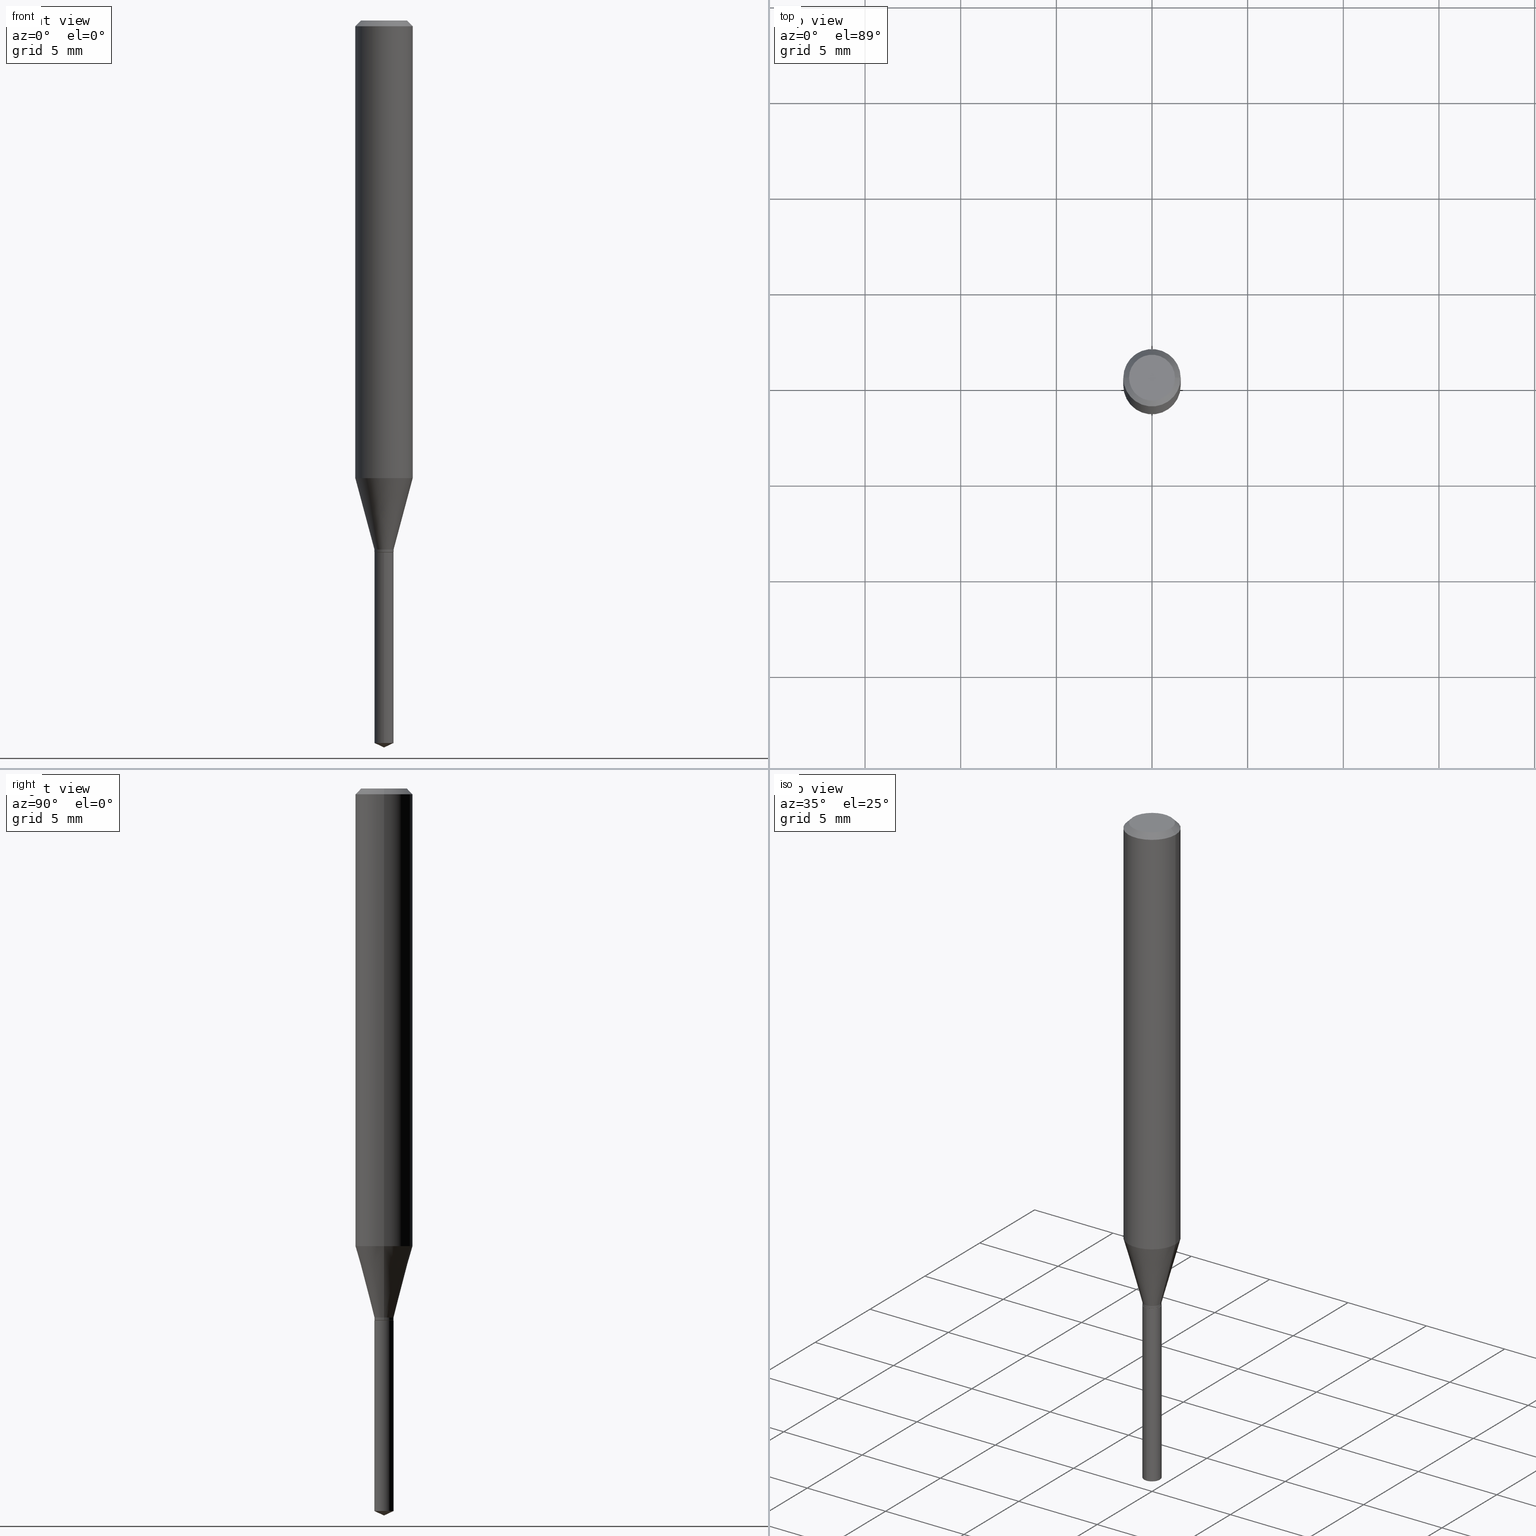
[diagram: canonical four-view strip — front | top / right | iso, engineering-drawing reading convention]
A machine part, canonical four-view strip (front | top / right | iso — engineering-drawing reading convention). The complete STEP part file that produces these views, byte-faithful:
ISO-10303-21;
HEADER;
FILE_DESCRIPTION (( 'STEP AP203' ),
    '1' );
FILE_NAME ('07480.STEP',
    '2024-04-23T21:55:08',
    ( '' ),
    ( '' ),
    'SwSTEP 2.0',
    'SolidWorks 2023',
    '' );
FILE_SCHEMA (( 'CONFIG_CONTROL_DESIGN' ));
ENDSEC;

DATA;
#1 = DIRECTION ( 'NONE',  ( 1.000000000000000000, -6.982962677686266711E-15, 4.876185090822587894E-29 ) ) ;
#2 = VECTOR ( 'NONE', #378, 39.37007874015748143 ) ;
#3 = FACE_OUTER_BOUND ( 'NONE', #320, .T. ) ;
#4 = ORGANIZATION ( 'UNSPECIFIED', 'UNSPECIFIED', '' ) ;
#5 = CARTESIAN_POINT ( 'NONE',  ( -0.05905000000000000526, -1.245082164935856452E-15, -0.01181000000000007738 ) ) ;
#6 = DIRECTION ( 'NONE',  ( 1.000000000000000000, 0.000000000000000000, 0.000000000000000000 ) ) ;
#7 = DIRECTION ( 'NONE',  ( 1.000000000000000000, -6.982962677686266711E-15, 4.876176775795935793E-29 ) ) ;
#8 = EDGE_LOOP ( 'NONE', ( #316, #427, #355, #350 ) ) ;
#9 = CARTESIAN_POINT ( 'NONE',  ( 0.000000000000000000, 0.000000000000000000, 0.000000000000000000 ) ) ;
#10 = EDGE_CURVE ( 'NONE', #385, #415, #285, .T. ) ;
#11 = VECTOR ( 'NONE', #34, 39.37007874015748143 ) ;
#12 = ORIENTED_EDGE ( 'NONE', *, *, #224, .T. ) ;
#13 = ORIENTED_EDGE ( 'NONE', *, *, #151, .T. ) ;
#14 = EDGE_LOOP ( 'NONE', ( #55, #207, #456, #125 ) ) ;
#15 = EDGE_CURVE ( 'NONE', #85, #391, #92, .T. ) ;
#16 = VERTEX_POINT ( 'NONE', #172 ) ;
#17 = FACE_OUTER_BOUND ( 'NONE', #81, .T. ) ;
#18 = CONICAL_SURFACE ( 'NONE', #390, 0.01969999999999999876, 0.2617993877991498519 ) ;
#19 = AXIS2_PLACEMENT_3D ( 'NONE', #91, #126, #470 ) ;
#20 = LINE ( 'NONE', #388, #36 ) ;
#21 = VERTEX_POINT ( 'NONE', #295 ) ;
#22 = CALENDAR_DATE ( 2024, 23, 4 ) ;
#23 = ORIENTED_EDGE ( 'NONE', *, *, #166, .T. ) ;
#24 = APPROVAL_ROLE ( '' ) ;
#25 = ADVANCED_FACE ( 'NONE', ( #412 ), #363, .T. ) ;
#26 = DIRECTION ( 'NONE',  ( 0.2588190451025211281, 1.565188264969622954E-15, 0.9659258262890679791 ) ) ;
#27 = CIRCLE ( 'NONE', #444, 0.01969999999999999876 ) ;
#28 = APPROVAL_STATUS ( 'not_yet_approved' ) ;
#29 = DIRECTION ( 'NONE',  ( -2.445468806185136877E-29, 3.491481338843145188E-15, 1.000000000000000000 ) ) ;
#30 = PERSON_AND_ORGANIZATION ( #119, #4 ) ;
#31 = DESIGN_CONTEXT ( 'detailed design', #243, 'design' ) ;
#32 = DIRECTION ( 'NONE',  ( 1.000000000000000000, -6.982962677686266711E-15, 4.876176775795935793E-29 ) ) ;
#33 = APPROVAL ( #135, 'UNSPECIFIED' ) ;
#34 = DIRECTION ( 'NONE',  ( -0.7071067811865218156, 7.493145998870261075E-15, 0.7071067811865732189 ) ) ;
#35 = APPROVAL_ROLE ( '' ) ;
#36 = VECTOR ( 'NONE', #204, 39.37007874015748143 ) ;
#37 = LINE ( 'NONE', #110, #474 ) ;
#38 = DIRECTION ( 'NONE',  ( 0.7071067811865218156, -2.468850131081987665E-15, 0.7071067811865732189 ) ) ;
#39 = CARTESIAN_POINT ( 'NONE',  ( 2.676565608369631794E-29, -3.821426325363822773E-15, -1.094499999999999806 ) ) ;
#40 = COORDINATED_UNIVERSAL_TIME_OFFSET ( 5, 0, .BEHIND. ) ;
#41 = AXIS2_PLACEMENT_3D ( 'NONE', #367, #256, #32 ) ;
#42 = FACE_OUTER_BOUND ( 'NONE', #8, .T. ) ;
#43 = AXIS2_PLACEMENT_3D ( 'NONE', #338, #153, #455 ) ;
#44 =( CONVERSION_BASED_UNIT ( 'INCH', #152 ) LENGTH_UNIT ( ) NAMED_UNIT ( #404 ) );
#45 = DIRECTION ( 'NONE',  ( -2.445468806185136597E-29, 3.491481338843145583E-15, 1.000000000000000000 ) ) ;
#46 = EDGE_CURVE ( 'NONE', #21, #431, #82, .T. ) ;
#47 = EDGE_LOOP ( 'NONE', ( #383, #235 ) ) ;
#48 = DIRECTION ( 'NONE',  ( 1.000000000000000000, -6.982962677686254878E-15, 0.000000000000000000 ) ) ;
#49 = VERTEX_POINT ( 'NONE', #217 ) ;
#50 = FACE_OUTER_BOUND ( 'NONE', #309, .T. ) ;
#51 = VECTOR ( 'NONE', #216, 39.37007874015748854 ) ;
#52 = AXIS2_PLACEMENT_3D ( 'NONE', #418, #115, #158 ) ;
#53 = ORIENTED_EDGE ( 'NONE', *, *, #100, .T. ) ;
#54 = EDGE_CURVE ( 'NONE', #431, #21, #60, .T. ) ;
#55 = ORIENTED_EDGE ( 'NONE', *, *, #368, .F. ) ;
#56 = ORIENTED_EDGE ( 'NONE', *, *, #224, .F. ) ;
#57 = DIRECTION ( 'NONE',  ( -6.982962677686266711E-15, -1.000000000000000000, 3.520397390770457025E-15 ) ) ;
#58 = PRODUCT_DEFINITION_SHAPE ( 'NONE', 'NONE',  #381 ) ;
#59 = AXIS2_PLACEMENT_3D ( 'NONE', #403, #292, #372 ) ;
#60 = CIRCLE ( 'NONE', #408, 0.01969999999999999876 ) ;
#61 = PERSON_AND_ORGANIZATION ( #119, #4 ) ;
#62 = EDGE_CURVE ( 'NONE', #98, #129, #365, .T. ) ;
#63 = APPLICATION_CONTEXT ( 'configuration controlled 3d designs of mechanical parts and assemblies' ) ;
#64 = CARTESIAN_POINT ( 'NONE',  ( 2.676565608369631794E-29, -3.821426325363822773E-15, -1.094499999999999806 ) ) ;
#65 = PERSON_AND_ORGANIZATION_ROLE ( 'classification_officer' ) ;
#66 = CARTESIAN_POINT ( 'NONE',  ( 3.636201719211425754E-29, -5.191530781201762565E-15, -1.486913739134346546 ) ) ;
#67 = AXIS2_PLACEMENT_3D ( 'NONE', #282, #349, #205 ) ;
#68 = AXIS2_PLACEMENT_3D ( 'NONE', #266, #45, #419 ) ;
#69 = FACE_OUTER_BOUND ( 'NONE', #211, .T. ) ;
#70 = CC_DESIGN_PERSON_AND_ORGANIZATION_ASSIGNMENT ( #79, #225, ( #424 ) ) ;
#71 = DIRECTION ( 'NONE',  ( -2.445468806185136597E-29, 3.491481338843145583E-15, 1.000000000000000000 ) ) ;
#72 = DIRECTION ( 'NONE',  ( 1.000000000000000000, -6.982962677686277755E-15, 0.000000000000000000 ) ) ;
#73 = CIRCLE ( 'NONE', #317, 0.01919999999999999832 ) ;
#74 = CC_DESIGN_APPROVAL ( #294, ( #381 ) ) ;
#75 = DIRECTION ( 'NONE',  ( -2.445468806185136597E-29, 3.491481338843145583E-15, 1.000000000000000000 ) ) ;
#76 =( LENGTH_UNIT ( ) NAMED_UNIT ( * ) SI_UNIT ( $, .METRE. ) );
#77 = EDGE_CURVE ( 'NONE', #431, #375, #103, .T. ) ;
#78 = CARTESIAN_POINT ( 'NONE',  ( 2.676565608369631794E-29, -3.821426325363822773E-15, -1.094499999999999806 ) ) ;
#79 = PERSON_AND_ORGANIZATION ( #119, #4 ) ;
#80 = DIRECTION ( 'NONE',  ( -2.445470214571802116E-29, 3.491479321953280158E-15, 1.000000000000000000 ) ) ;
#81 = EDGE_LOOP ( 'NONE', ( #351, #304 ) ) ;
#82 = CIRCLE ( 'NONE', #244, 0.01969999999999999876 ) ;
#83 = FACE_OUTER_BOUND ( 'NONE', #361, .T. ) ;
#84 = CC_DESIGN_PERSON_AND_ORGANIZATION_ASSIGNMENT ( #101, #65, ( #382 ) ) ;
#85 = VERTEX_POINT ( 'NONE', #331 ) ;
#86 = LINE ( 'NONE', #457, #2 ) ;
#87 = ORIENTED_EDGE ( 'NONE', *, *, #104, .F. ) ;
#88 = CARTESIAN_POINT ( 'NONE',  ( 1.399769189447761387E-16, 0.01969999999999617890, -1.094500000000000028 ) ) ;
#89 = ORIENTED_EDGE ( 'NONE', *, *, #104, .T. ) ;
#90 = EDGE_CURVE ( 'NONE', #273, #16, #335, .T. ) ;
#91 = CARTESIAN_POINT ( 'NONE',  ( 2.888098660104665518E-31, -4.123439461173782112E-17, -0.01181000000000007738 ) ) ;
#92 = LINE ( 'NONE', #465, #188 ) ;
#93 = CONICAL_SURFACE ( 'NONE', #52, 0.05905000000000000526, 0.7853981633974452814 ) ;
#94 = ORIENTED_EDGE ( 'NONE', *, *, #140, .T. ) ;
#95 = CARTESIAN_POINT ( 'NONE',  ( 0.000000000000000000, 0.000000000000000000, 0.000000000000000000 ) ) ;
#96 = ORIENTED_EDGE ( 'NONE', *, *, #233, .F. ) ;
#97 = CARTESIAN_POINT ( 'NONE',  ( -1.375643647503926643E-16, -0.01970000000000381862, -1.094499999999999806 ) ) ;
#98 = VERTEX_POINT ( 'NONE', #250 ) ;
#99 = VECTOR ( 'NONE', #296, 39.37007874015748143 ) ;
#100 = EDGE_CURVE ( 'NONE', #21, #387, #373, .T. ) ;
#101 = PERSON_AND_ORGANIZATION ( #119, #4 ) ;
#102 = CARTESIAN_POINT ( 'NONE',  ( 2.662137342413139764E-29, -3.800826585464648242E-15, -1.088600000000000012 ) ) ;
#103 = LINE ( 'NONE', #337, #339 ) ;
#104 = EDGE_CURVE ( 'NONE', #129, #431, #37, .T. ) ;
#105 = DIRECTION ( 'NONE',  ( 1.000000000000000000, -6.982962677686267499E-15, 0.000000000000000000 ) ) ;
#106 = COORDINATED_UNIVERSAL_TIME_OFFSET ( 5, 0, .BEHIND. ) ;
#107 = APPROVAL_PERSON_ORGANIZATION ( #61, #33, #405 ) ;
#108 = CARTESIAN_POINT ( 'NONE',  ( -0.01919999999999999832, -3.685002120097882785E-15, -1.094499999999999806 ) ) ;
#109 = DIRECTION ( 'NONE',  ( 1.000000000000000000, -6.982962677686267499E-15, 0.000000000000000000 ) ) ;
#110 = CARTESIAN_POINT ( 'NONE',  ( 0.01969999999999999876, -1.375643647504194363E-16, 9.606068248317991466E-31 ) ) ;
#111 = PLANE ( 'NONE',  #253 ) ;
#112 = ORIENTED_EDGE ( 'NONE', *, *, #249, .T. ) ;
#113 = EDGE_CURVE ( 'NONE', #16, #98, #406, .T. ) ;
#114 = AXIS2_PLACEMENT_3D ( 'NONE', #201, #174, #239 ) ;
#115 = DIRECTION ( 'NONE',  ( 2.445468806185136597E-29, -3.491481338843145583E-15, -1.000000000000000000 ) ) ;
#116 = DIRECTION ( 'NONE',  ( 1.000000000000000000, -6.982962677686277755E-15, 0.000000000000000000 ) ) ;
#117 = LINE ( 'NONE', #343, #198 ) ;
#118 = EDGE_CURVE ( 'NONE', #127, #311, #154, .T. ) ;
#119 = PERSON ( 'UNSPECIFIED', 'UNSPECIFIED', 'UNSPECIFIED', ('UNSPECIFIED'), ('UNSPECIFIED'), ('UNSPECIFIED') ) ;
#120 = ORIENTED_EDGE ( 'NONE', *, *, #393, .F. ) ;
#121 = AXIS2_PLACEMENT_3D ( 'NONE', #270, #377, #230 ) ;
#122 = PRODUCT_DEFINITION_FORMATION_WITH_SPECIFIED_SOURCE ( 'ANY', '', #424, .NOT_KNOWN. ) ;
#123 = CYLINDRICAL_SURFACE ( 'NONE', #276, 0.05905000000000006077 ) ;
#124 = AXIS2_PLACEMENT_3D ( 'NONE', #191, #75, #156 ) ;
#125 = ORIENTED_EDGE ( 'NONE', *, *, #484, .T. ) ;
#126 = DIRECTION ( 'NONE',  ( 2.445468806185136597E-29, -3.491481338843145583E-15, -1.000000000000000000 ) ) ;
#127 = VERTEX_POINT ( 'NONE', #147 ) ;
#128 = ORIENTED_EDGE ( 'NONE', *, *, #90, .T. ) ;
#129 = VERTEX_POINT ( 'NONE', #177 ) ;
#130 = CARTESIAN_POINT ( 'NONE',  ( 2.303005088084284954E-29, -3.288080906192655344E-15, -0.9417438007221644591 ) ) ;
#131 = ORIENTED_EDGE ( 'NONE', *, *, #140, .F. ) ;
#132 = CARTESIAN_POINT ( 'NONE',  ( -0.05905000000000010935, -2.868505420726315851E-15, -0.9417438007221644591 ) ) ;
#133 = VERTEX_POINT ( 'NONE', #212 ) ;
#134 = APPROVAL ( #28, 'UNSPECIFIED' ) ;
#135 = APPROVAL_STATUS ( 'not_yet_approved' ) ;
#136 = ORIENTED_EDGE ( 'NONE', *, *, #46, .F. ) ;
#137 = LOCAL_TIME ( 17, 55, 8.000000000000000000, #251 ) ;
#138 = PERSON_AND_ORGANIZATION ( #119, #4 ) ;
#139 = DIRECTION ( 'NONE',  ( -2.445470214571802116E-29, 3.491479321953280158E-15, 1.000000000000000000 ) ) ;
#140 = EDGE_CURVE ( 'NONE', #49, #415, #477, .T. ) ;
#141 = COORDINATED_UNIVERSAL_TIME_OFFSET ( 5, 0, .BEHIND. ) ;
#142 = DIRECTION ( 'NONE',  ( -2.445468806185136597E-29, 3.491481338843145583E-15, 1.000000000000000000 ) ) ;
#143 = PERSON_AND_ORGANIZATION ( #119, #4 ) ;
#144 = DIRECTION ( 'NONE',  ( -2.445470214571802116E-29, 3.491479321953280158E-15, 1.000000000000000000 ) ) ;
#145 = DIRECTION ( 'NONE',  ( 1.000000000000000000, -6.982962677686254878E-15, 0.000000000000000000 ) ) ;
#146 = CIRCLE ( 'NONE', #286, 0.04724000000000000421 ) ;
#147 = CARTESIAN_POINT ( 'NONE',  ( 0.05905000000000000526, -4.535783407291119586E-16, -0.01181000000000007738 ) ) ;
#148 = ORIENTED_EDGE ( 'NONE', *, *, #271, .T. ) ;
#149 =( NAMED_UNIT ( * ) PLANE_ANGLE_UNIT ( ) SI_UNIT ( $, .RADIAN. ) );
#150 = CARTESIAN_POINT ( 'NONE',  ( 3.658664905062460986E-29, -5.223606628546217219E-15, -1.496099999999999985 ) ) ;
#151 = EDGE_CURVE ( 'NONE', #49, #391, #162, .T. ) ;
#152 = LENGTH_MEASURE_WITH_UNIT ( LENGTH_MEASURE( 0.02539999999999999897 ), #76 );
#153 = DIRECTION ( 'NONE',  ( -2.445468806185136597E-29, 3.491481338843145583E-15, 1.000000000000000000 ) ) ;
#154 = CIRCLE ( 'NONE', #236, 0.05905000000000000526 ) ;
#155 = AXIS2_PLACEMENT_3D ( 'NONE', #322, #328, #332 ) ;
#156 = DIRECTION ( 'NONE',  ( 1.000000000000000000, -6.982962677686254878E-15, 0.000000000000000000 ) ) ;
#157 = ADVANCED_FACE ( 'NONE', ( #69 ), #252, .T. ) ;
#158 = DIRECTION ( 'NONE',  ( -1.000000000000000000, 6.982962677686267499E-15, 0.000000000000000000 ) ) ;
#159 = EDGE_LOOP ( 'NONE', ( #435, #459, #194 ) ) ;
#160 = DIRECTION ( 'NONE',  ( -2.445470214571802116E-29, 3.491479321953280158E-15, 1.000000000000000000 ) ) ;
#161 = ORIENTED_EDGE ( 'NONE', *, *, #10, .F. ) ;
#162 = CIRCLE ( 'NONE', #325, 0.01969999999999999876 ) ;
#163 = AXIS2_PLACEMENT_3D ( 'NONE', #95, #168, #360 ) ;
#164 = DIRECTION ( 'NONE',  ( 6.982962677686265922E-15, 1.000000000000000000, -3.491479321953280158E-15 ) ) ;
#165 = ORIENTED_EDGE ( 'NONE', *, *, #113, .T. ) ;
#166 = EDGE_CURVE ( 'NONE', #129, #98, #27, .T. ) ;
#167 = ORIENTED_EDGE ( 'NONE', *, *, #151, .F. ) ;
#168 = DIRECTION ( 'NONE',  ( -2.445468806185136597E-29, 3.491481338843145583E-15, 1.000000000000000000 ) ) ;
#169 = ORIENTED_EDGE ( 'NONE', *, *, #182, .T. ) ;
#170 = EDGE_LOOP ( 'NONE', ( #432, #53, #184, #238 ) ) ;
#171 = AXIS2_PLACEMENT_3D ( 'NONE', #176, #327, #72 ) ;
#172 = CARTESIAN_POINT ( 'NONE',  ( -0.01919999999999999832, -3.682352892923772373E-15, -1.094499999999999806 ) ) ;
#173 = CC_DESIGN_PERSON_AND_ORGANIZATION_ASSIGNMENT ( #138, #213, ( #122 ) ) ;
#174 = DIRECTION ( 'NONE',  ( -2.445470214571802116E-29, 3.491479321953280158E-15, 1.000000000000000000 ) ) ;
#175 = SECURITY_CLASSIFICATION_LEVEL ( 'unclassified' ) ;
#176 = CARTESIAN_POINT ( 'NONE',  ( 2.676565608369631794E-29, -3.821426325363822773E-15, -1.094499999999999806 ) ) ;
#177 = CARTESIAN_POINT ( 'NONE',  ( 0.01969999999999999876, -3.957244949444820484E-15, -1.093999999999999861 ) ) ;
#178 = CARTESIAN_POINT ( 'NONE',  ( 2.888098660104665518E-31, -4.123439461173782112E-17, -0.01181000000000007738 ) ) ;
#179 = DIRECTION ( 'NONE',  ( -2.445470214571802396E-29, 3.491479321953280158E-15, 1.000000000000000000 ) ) ;
#180 = APPROVAL_PERSON_ORGANIZATION ( #143, #134, #24 ) ;
#181 = CALENDAR_DATE ( 2024, 23, 4 ) ;
#182 = EDGE_CURVE ( 'NONE', #387, #311, #258, .T. ) ;
#183 = DIRECTION ( 'NONE',  ( 1.000000000000000000, -6.982962677686267499E-15, 0.000000000000000000 ) ) ;
#184 = ORIENTED_EDGE ( 'NONE', *, *, #187, .F. ) ;
#185 = DIRECTION ( 'NONE',  ( -6.982962677686266711E-15, -1.000000000000000000, 3.520397390770457025E-15 ) ) ;
#186 = MECHANICAL_CONTEXT ( 'NONE', #63, 'mechanical' ) ;
#187 = EDGE_CURVE ( 'NONE', #375, #387, #197, .T. ) ;
#188 = VECTOR ( 'NONE', #354, 39.37007874015748854 ) ;
#189 = CARTESIAN_POINT ( 'NONE',  ( 0.000000000000000000, 0.000000000000000000, 0.000000000000000000 ) ) ;
#190 = CIRCLE ( 'NONE', #215, 0.01969999999999999876 ) ;
#191 = CARTESIAN_POINT ( 'NONE',  ( 2.662137342413139764E-29, -3.800826585464648242E-15, -1.088600000000000012 ) ) ;
#192 = PERSON_AND_ORGANIZATION ( #119, #4 ) ;
#193 = DIRECTION ( 'NONE',  ( 1.000000000000000000, -6.982962677686277755E-15, 0.000000000000000000 ) ) ;
#194 = ORIENTED_EDGE ( 'NONE', *, *, #440, .F. ) ;
#195 = CARTESIAN_POINT ( 'NONE',  ( 0.01919999999999999832, -3.955499208775398981E-15, -1.094499999999999806 ) ) ;
#196 = EDGE_LOOP ( 'NONE', ( #272, #228, #94, #161 ) ) ;
#197 = CIRCLE ( 'NONE', #437, 0.05905000000000010935 ) ;
#198 = VECTOR ( 'NONE', #423, 39.37007874015748143 ) ;
#199 = DIRECTION ( 'NONE',  ( -2.445470214571802116E-29, 3.491479321953280158E-15, 1.000000000000000000 ) ) ;
#200 = ORIENTED_EDGE ( 'NONE', *, *, #368, .T. ) ;
#201 = CARTESIAN_POINT ( 'NONE',  ( 2.676565608369631794E-29, -3.821426325363822773E-15, -1.094499999999999806 ) ) ;
#202 = ORIENTED_EDGE ( 'NONE', *, *, #54, .F. ) ;
#203 = ORIENTED_EDGE ( 'NONE', *, *, #420, .T. ) ;
#204 = DIRECTION ( 'NONE',  ( -2.445468806185136877E-29, 3.491481338843145188E-15, 1.000000000000000000 ) ) ;
#205 = DIRECTION ( 'NONE',  ( -6.982962677686265133E-15, -1.000000000000000000, 6.933624349401683764E-15 ) ) ;
#206 = EDGE_CURVE ( 'NONE', #85, #49, #488, .T. ) ;
#207 = ORIENTED_EDGE ( 'NONE', *, *, #324, .F. ) ;
#208 = AXIS2_PLACEMENT_3D ( 'NONE', #189, #265, #6 ) ;
#209 = CALENDAR_DATE ( 2024, 23, 4 ) ;
#210 = CARTESIAN_POINT ( 'NONE',  ( 0.05905000000000010935, -3.700424852310029476E-15, -0.9417438007221644591 ) ) ;
#211 = EDGE_LOOP ( 'NONE', ( #314, #169, #269, #120 ) ) ;
#212 = CARTESIAN_POINT ( 'NONE',  ( 0.04724000000000000421, -3.852183633974369838E-16, -3.380025165621689721E-19 ) ) ;
#213 = PERSON_AND_ORGANIZATION_ROLE ( 'design_supplier' ) ;
#214 = DIRECTION ( 'NONE',  ( 1.000000000000000000, -6.982962677686254878E-15, 0.000000000000000000 ) ) ;
#215 = AXIS2_PLACEMENT_3D ( 'NONE', #237, #283, #392 ) ;
#216 = DIRECTION ( 'NONE',  ( -0.2588190451025211281, 5.211531920934547886E-15, 0.9659258262890679791 ) ) ;
#217 = CARTESIAN_POINT ( 'NONE',  ( -1.375643647503830500E-16, -0.01970000000000518905, -1.486913739134346546 ) ) ;
#218 = CC_DESIGN_DATE_AND_TIME_ASSIGNMENT ( #358, #290, ( #382 ) ) ;
#219 = DIRECTION ( 'NONE',  ( -2.445468806185136597E-29, 3.491481338843145583E-15, 1.000000000000000000 ) ) ;
#220 = VECTOR ( 'NONE', #297, 39.37007874015748143 ) ;
#221 = CONICAL_SURFACE ( 'NONE', #366, 84.42940631927426409, 1.134464013796315562 ) ;
#222 = CARTESIAN_POINT ( 'NONE',  ( -9.261968845786000133E-28, 1.322362114038720264E-13, 37.87397874015748300 ) ) ;
#223 = FACE_OUTER_BOUND ( 'NONE', #450, .T. ) ;
#224 = EDGE_CURVE ( 'NONE', #16, #273, #73, .T. ) ;
#225 = PERSON_AND_ORGANIZATION_ROLE ( 'design_owner' ) ;
#226 = DIRECTION ( 'NONE',  ( -2.445468806185136597E-29, 3.491481338843145583E-15, 1.000000000000000000 ) ) ;
#227 = CLOSED_SHELL ( 'NONE', ( #359, #330, #157, #240, #25, #398, #301, #263, #426, #469, #307, #348 ) ) ;
#228 = ORIENTED_EDGE ( 'NONE', *, *, #440, .T. ) ;
#229 =( GEOMETRIC_REPRESENTATION_CONTEXT ( 3 ) GLOBAL_UNCERTAINTY_ASSIGNED_CONTEXT ( ( #436 ) ) GLOBAL_UNIT_ASSIGNED_CONTEXT ( ( #44, #149, #267 ) ) REPRESENTATION_CONTEXT ( 'NONE', 'WORKASPACE' ) );
#230 = DIRECTION ( 'NONE',  ( 1.000000000000000000, -6.982962677686265922E-15, 4.876176775795935793E-29 ) ) ;
#231 = EDGE_LOOP ( 'NONE', ( #389, #203, #274, #344 ) ) ;
#232 = DIRECTION ( 'NONE',  ( -2.445468806185136597E-29, 3.491481338843145583E-15, 1.000000000000000000 ) ) ;
#233 = EDGE_CURVE ( 'NONE', #415, #385, #356, .T. ) ;
#234 = ORIENTED_EDGE ( 'NONE', *, *, #277, .F. ) ;
#235 = ORIENTED_EDGE ( 'NONE', *, *, #10, .T. ) ;
#236 = AXIS2_PLACEMENT_3D ( 'NONE', #248, #371, #105 ) ;
#237 = CARTESIAN_POINT ( 'NONE',  ( 3.636201719211425754E-29, -5.191530781201762565E-15, -1.486913739134346546 ) ) ;
#238 = ORIENTED_EDGE ( 'NONE', *, *, #77, .F. ) ;
#239 = DIRECTION ( 'NONE',  ( -6.982962677686265133E-15, -1.000000000000000000, 6.933624349401683764E-15 ) ) ;
#240 = ADVANCED_FACE ( 'NONE', ( #268 ), #18, .T. ) ;
#241 = ORIENTED_EDGE ( 'NONE', *, *, #490, .F. ) ;
#242 = CARTESIAN_POINT ( 'NONE',  ( -9.261968845786000133E-28, 1.322362114038720264E-13, 37.87397874015748300 ) ) ;
#243 = APPLICATION_CONTEXT ( 'configuration controlled 3d designs of mechanical parts and assemblies' ) ;
#244 = AXIS2_PLACEMENT_3D ( 'NONE', #443, #142, #214 ) ;
#245 = LOCAL_TIME ( 17, 55, 8.000000000000000000, #106 ) ;
#246 = ORIENTED_EDGE ( 'NONE', *, *, #62, .F. ) ;
#247 = PERSON_AND_ORGANIZATION_ROLE ( 'creator' ) ;
#248 = CARTESIAN_POINT ( 'NONE',  ( 2.888098660104665518E-31, -4.123439461173782112E-17, -0.01181000000000007738 ) ) ;
#249 = EDGE_CURVE ( 'NONE', #273, #129, #260, .T. ) ;
#250 = CARTESIAN_POINT ( 'NONE',  ( -0.01969999999999999876, -3.670276666134784264E-15, -1.093999999999999861 ) ) ;
#251 = COORDINATED_UNIVERSAL_TIME_OFFSET ( 5, 0, .BEHIND. ) ;
#252 = CYLINDRICAL_SURFACE ( 'NONE', #41, 0.05905000000000006077 ) ;
#253 = AXIS2_PLACEMENT_3D ( 'NONE', #380, #302, #164 ) ;
#254 = CIRCLE ( 'NONE', #430, 0.05905000000000000526 ) ;
#255 = DIRECTION ( 'NONE',  ( -6.982962677686265133E-15, -1.000000000000000000, 6.933624349401683764E-15 ) ) ;
#256 = DIRECTION ( 'NONE',  ( -2.445468806185136597E-29, 3.491481338843145583E-15, 1.000000000000000000 ) ) ;
#257 = CC_DESIGN_DATE_AND_TIME_ASSIGNMENT ( #411, #475, ( #381 ) ) ;
#258 = LINE ( 'NONE', #486, #99 ) ;
#259 = ORIENTED_EDGE ( 'NONE', *, *, #15, .T. ) ;
#260 = LINE ( 'NONE', #195, #299 ) ;
#261 = AXIS2_PLACEMENT_3D ( 'NONE', #410, #71, #442 ) ;
#262 = CC_DESIGN_SECURITY_CLASSIFICATION ( #382, ( #122 ) ) ;
#263 = ADVANCED_FACE ( 'NONE', ( #303 ), #123, .T. ) ;
#264 = CARTESIAN_POINT ( 'NONE',  ( 0.01919999999999999832, -3.955499208775398981E-15, -1.094499999999999806 ) ) ;
#265 = DIRECTION ( 'NONE',  ( 0.000000000000000000, 0.000000000000000000, 1.000000000000000000 ) ) ;
#266 = CARTESIAN_POINT ( 'NONE',  ( 2.676565608369631794E-29, -3.821426325363822773E-15, -1.094499999999999806 ) ) ;
#267 =( NAMED_UNIT ( * ) SI_UNIT ( $, .STERADIAN. ) SOLID_ANGLE_UNIT ( ) );
#268 = FACE_OUTER_BOUND ( 'NONE', #170, .T. ) ;
#269 = ORIENTED_EDGE ( 'NONE', *, *, #118, .F. ) ;
#270 = CARTESIAN_POINT ( 'NONE',  ( 2.676565608369631794E-29, -3.821426325363822773E-15, -1.094499999999999806 ) ) ;
#271 = EDGE_CURVE ( 'NONE', #391, #385, #298, .T. ) ;
#272 = ORIENTED_EDGE ( 'NONE', *, *, #271, .F. ) ;
#273 = VERTEX_POINT ( 'NONE', #264 ) ;
#274 = ORIENTED_EDGE ( 'NONE', *, *, #393, .T. ) ;
#275 = ORIENTED_EDGE ( 'NONE', *, *, #118, .T. ) ;
#276 = AXIS2_PLACEMENT_3D ( 'NONE', #9, #226, #7 ) ;
#277 = EDGE_CURVE ( 'NONE', #396, #311, #86, .T. ) ;
#278 = CONICAL_SURFACE ( 'NONE', #19, 0.05905000000000000526, 0.7853981633974452814 ) ;
#279 = FACE_OUTER_BOUND ( 'NONE', #461, .T. ) ;
#280 = ORIENTED_EDGE ( 'NONE', *, *, #113, .F. ) ;
#281 = DIRECTION ( 'NONE',  ( -2.445468806185136597E-29, 3.491481338843145583E-15, 1.000000000000000000 ) ) ;
#282 = CARTESIAN_POINT ( 'NONE',  ( 2.676565608369631794E-29, -3.821426325363822773E-15, -1.094499999999999806 ) ) ;
#283 = DIRECTION ( 'NONE',  ( -2.445470214571802116E-29, 3.491479321953280158E-15, 1.000000000000000000 ) ) ;
#284 = COORDINATED_UNIVERSAL_TIME_OFFSET ( 5, 0, .BEHIND. ) ;
#285 = CIRCLE ( 'NONE', #67, 0.01969999999999999876 ) ;
#286 = AXIS2_PLACEMENT_3D ( 'NONE', #487, #232, #1 ) ;
#287 = ORIENTED_EDGE ( 'NONE', *, *, #249, .F. ) ;
#288 = ADVANCED_FACE ( 'NONE', ( #421 ), #111, .F. ) ;
#289 = DIRECTION ( 'NONE',  ( -6.982962677686265133E-15, -1.000000000000000000, 0.000000000000000000 ) ) ;
#290 = DATE_TIME_ROLE ( 'classification_date' ) ;
#291 = CARTESIAN_POINT ( 'NONE',  ( 2.676565608369631794E-29, -3.821426325363822773E-15, -1.094499999999999806 ) ) ;
#292 = DIRECTION ( 'NONE',  ( -2.445468806185136597E-29, 3.491481338843145583E-15, 1.000000000000000000 ) ) ;
#293 = MANIFOLD_SOLID_BREP ( 'Body-Move/Copy2[2]', #227 ) ;
#294 = APPROVAL ( #305, 'UNSPECIFIED' ) ;
#295 = CARTESIAN_POINT ( 'NONE',  ( -0.01969999999999999876, -3.670276666134784264E-15, -1.088600000000000012 ) ) ;
#296 = DIRECTION ( 'NONE',  ( -2.445468806185136877E-29, 3.491481338843145188E-15, 1.000000000000000000 ) ) ;
#297 = DIRECTION ( 'NONE',  ( -6.328713451373374112E-15, -0.9063077870366490485, 0.4226182617407013287 ) ) ;
#298 = LINE ( 'NONE', #416, #333 ) ;
#299 = VECTOR ( 'NONE', #38, 39.37007874015748143 ) ;
#300 = AXIS2_PLACEMENT_3D ( 'NONE', #39, #454, #116 ) ;
#301 = ADVANCED_FACE ( 'NONE', ( #42 ), #399, .T. ) ;
#302 = DIRECTION ( 'NONE',  ( 2.445470214571801836E-29, -3.491479321953280158E-15, -1.000000000000000000 ) ) ;
#303 = FACE_OUTER_BOUND ( 'NONE', #231, .T. ) ;
#304 = ORIENTED_EDGE ( 'NONE', *, *, #490, .T. ) ;
#305 = APPROVAL_STATUS ( 'not_yet_approved' ) ;
#306 = FACE_OUTER_BOUND ( 'NONE', #369, .T. ) ;
#307 = ADVANCED_FACE ( 'NONE', ( #83 ), #341, .F. ) ;
#308 = CIRCLE ( 'NONE', #326, 0.05905000000000010935 ) ;
#309 = EDGE_LOOP ( 'NONE', ( #422, #468, #89, #136 ) ) ;
#310 = CYLINDRICAL_SURFACE ( 'NONE', #163, 0.01969999999999999876 ) ;
#311 = VERTEX_POINT ( 'NONE', #5 ) ;
#312 = LINE ( 'NONE', #460, #357 ) ;
#313 = ADVANCED_FACE ( 'NONE', ( #3 ), #402, .T. ) ;
#314 = ORIENTED_EDGE ( 'NONE', *, *, #187, .T. ) ;
#315 = CARTESIAN_POINT ( 'NONE',  ( 0.01969999999999999876, -3.938390950215067457E-15, -1.088600000000000012 ) ) ;
#316 = ORIENTED_EDGE ( 'NONE', *, *, #100, .F. ) ;
#317 = AXIS2_PLACEMENT_3D ( 'NONE', #64, #386, #193 ) ;
#318 = LOCAL_TIME ( 17, 55, 8.000000000000000000, #40 ) ;
#319 = PLANE ( 'NONE',  #155 ) ;
#320 = EDGE_LOOP ( 'NONE', ( #397, #259, #167 ) ) ;
#321 = ADVANCED_BREP_SHAPE_REPRESENTATION ( '07480', ( #472, #293, #208 ), #229 ) ;
#322 = CARTESIAN_POINT ( 'NONE',  ( 4.132873053354867254E-48, -5.900647395337818946E-34, -1.690012582823346072E-19 ) ) ;
#323 = CALENDAR_DATE ( 2024, 23, 4 ) ;
#324 = EDGE_CURVE ( 'NONE', #396, #133, #439, .T. ) ;
#325 = AXIS2_PLACEMENT_3D ( 'NONE', #66, #139, #289 ) ;
#326 = AXIS2_PLACEMENT_3D ( 'NONE', #130, #281, #428 ) ;
#327 = DIRECTION ( 'NONE',  ( -2.445468806185136597E-29, 3.491481338843145583E-15, 1.000000000000000000 ) ) ;
#328 = DIRECTION ( 'NONE',  ( 2.438088387897960049E-29, -3.491481338843145188E-15, -1.000000000000000000 ) ) ;
#329 = CARTESIAN_POINT ( 'NONE',  ( 2.675342873966538993E-29, -3.819680584694400481E-15, -1.093999999999999861 ) ) ;
#330 = ADVANCED_FACE ( 'NONE', ( #451 ), #93, .T. ) ;
#331 = CARTESIAN_POINT ( 'NONE',  ( 3.658667988020872822E-29, -5.223602213574301462E-15, -1.496099999999999985 ) ) ;
#332 = DIRECTION ( 'NONE',  ( -1.000000000000000000, 6.982962677686265922E-15, -4.876176775795935793E-29 ) ) ;
#333 = VECTOR ( 'NONE', #384, 39.37007874015748143 ) ;
#334 = DIRECTION ( 'NONE',  ( -2.445468806185136597E-29, 3.491481338843145583E-15, 1.000000000000000000 ) ) ;
#335 = CIRCLE ( 'NONE', #171, 0.01919999999999999832 ) ;
#336 = LOCAL_TIME ( 17, 55, 8.000000000000000000, #141 ) ;
#337 = CARTESIAN_POINT ( 'NONE',  ( 0.01969999999999999876, -3.938390950215067457E-15, -1.088600000000000012 ) ) ;
#338 = CARTESIAN_POINT ( 'NONE',  ( 8.265746106709734507E-48, -1.180129479067563789E-33, -3.380025165646692144E-19 ) ) ;
#339 = VECTOR ( 'NONE', #26, 39.37007874015748854 ) ;
#340 = APPLICATION_PROTOCOL_DEFINITION ( 'international standard', 'config_control_design', 1994, #243 ) ;
#341 = PLANE ( 'NONE',  #121 ) ;
#342 = CC_DESIGN_PERSON_AND_ORGANIZATION_ASSIGNMENT ( #30, #247, ( #122 ) ) ;
#343 = CARTESIAN_POINT ( 'NONE',  ( 0.05905000000000000526, -4.463468013801467941E-16, -0.01181000000000007738 ) ) ;
#344 = ORIENTED_EDGE ( 'NONE', *, *, #484, .F. ) ;
#345 = DIRECTION ( 'NONE',  ( -6.982962677686265133E-15, -1.000000000000000000, 6.933624349401683764E-15 ) ) ;
#346 = ORIENTED_EDGE ( 'NONE', *, *, #166, .F. ) ;
#347 = FACE_OUTER_BOUND ( 'NONE', #14, .T. ) ;
#348 = ADVANCED_FACE ( 'NONE', ( #223 ), #467, .T. ) ;
#349 = DIRECTION ( 'NONE',  ( -2.445470214571802116E-29, 3.491479321953280158E-15, 1.000000000000000000 ) ) ;
#350 = ORIENTED_EDGE ( 'NONE', *, *, #420, .F. ) ;
#351 = ORIENTED_EDGE ( 'NONE', *, *, #324, .T. ) ;
#352 = EDGE_LOOP ( 'NONE', ( #241, #200, #275, #234 ) ) ;
#353 = FACE_OUTER_BOUND ( 'NONE', #159, .T. ) ;
#354 = DIRECTION ( 'NONE',  ( 6.439704144417028775E-15, 0.9063077870366519351, 0.4226182617406950559 ) ) ;
#355 = ORIENTED_EDGE ( 'NONE', *, *, #77, .T. ) ;
#356 = CIRCLE ( 'NONE', #429, 0.01969999999999999876 ) ;
#357 = VECTOR ( 'NONE', #462, 39.37007874015748143 ) ;
#358 = DATE_AND_TIME ( #22, #336 ) ;
#359 = ADVANCED_FACE ( 'NONE', ( #306 ), #485, .T. ) ;
#360 = DIRECTION ( 'NONE',  ( 1.000000000000000000, -6.982962677686265922E-15, 4.876176775795935232E-29 ) ) ;
#361 = EDGE_LOOP ( 'NONE', ( #463, #56 ) ) ;
#362 = APPROVAL_DATE_TIME ( #379, #294 ) ;
#363 = CYLINDRICAL_SURFACE ( 'NONE', #261, 0.01969999999999999876 ) ;
#364 = APPROVAL_DATE_TIME ( #400, #134 ) ;
#365 = CIRCLE ( 'NONE', #59, 0.01969999999999999876 ) ;
#366 = AXIS2_PLACEMENT_3D ( 'NONE', #242, #199, #57 ) ;
#367 = CARTESIAN_POINT ( 'NONE',  ( 0.000000000000000000, 0.000000000000000000, 0.000000000000000000 ) ) ;
#368 = EDGE_CURVE ( 'NONE', #133, #127, #117, .T. ) ;
#369 = EDGE_LOOP ( 'NONE', ( #128, #165, #346, #287 ) ) ;
#370 = DATE_AND_TIME ( #471, #401 ) ;
#371 = DIRECTION ( 'NONE',  ( -2.445468806185136597E-29, 3.491481338843145583E-15, 1.000000000000000000 ) ) ;
#372 = DIRECTION ( 'NONE',  ( 1.000000000000000000, -6.982962677686278543E-15, 0.000000000000000000 ) ) ;
#373 = LINE ( 'NONE', #481, #51 ) ;
#374 = APPROVAL_PERSON_ORGANIZATION ( #192, #294, #35 ) ;
#375 = VERTEX_POINT ( 'NONE', #210 ) ;
#376 = CC_DESIGN_PERSON_AND_ORGANIZATION_ASSIGNMENT ( #479, #407, ( #381 ) ) ;
#377 = DIRECTION ( 'NONE',  ( -2.438088387897960049E-29, 3.491481338843145188E-15, 1.000000000000000000 ) ) ;
#378 = DIRECTION ( 'NONE',  ( -0.7071067811865453523, 2.468850131082234184E-15, -0.7071067811865496822 ) ) ;
#379 = DATE_AND_TIME ( #181, #318 ) ;
#380 = CARTESIAN_POINT ( 'NONE',  ( 2.676565608369631794E-29, -3.821426325363822773E-15, -1.094499999999999806 ) ) ;
#381 = PRODUCT_DEFINITION ( 'UNKNOWN', '', #122, #31 ) ;
#382 = SECURITY_CLASSIFICATION ( '', '', #175 ) ;
#383 = ORIENTED_EDGE ( 'NONE', *, *, #233, .T. ) ;
#384 = DIRECTION ( 'NONE',  ( -2.445470214571802396E-29, 3.491479321953280158E-15, 1.000000000000000000 ) ) ;
#385 = VERTEX_POINT ( 'NONE', #88 ) ;
#386 = DIRECTION ( 'NONE',  ( -2.445468806185136597E-29, 3.491481338843145583E-15, 1.000000000000000000 ) ) ;
#387 = VERTEX_POINT ( 'NONE', #132 ) ;
#388 = CARTESIAN_POINT ( 'NONE',  ( -0.01969999999999999876, 1.399769189447397278E-16, -9.690302127802162501E-31 ) ) ;
#389 = ORIENTED_EDGE ( 'NONE', *, *, #182, .F. ) ;
#390 = AXIS2_PLACEMENT_3D ( 'NONE', #489, #449, #48 ) ;
#391 = VERTEX_POINT ( 'NONE', #433 ) ;
#392 = DIRECTION ( 'NONE',  ( -6.982962677686265133E-15, -1.000000000000000000, 0.000000000000000000 ) ) ;
#393 = EDGE_CURVE ( 'NONE', #375, #127, #312, .T. ) ;
#394 = EDGE_LOOP ( 'NONE', ( #23, #425, #202, #87 ) ) ;
#395 = CARTESIAN_POINT ( 'NONE',  ( -0.04724000000000000421, 3.504923541997677355E-16, -3.380025165670481712E-19 ) ) ;
#396 = VERTEX_POINT ( 'NONE', #395 ) ;
#397 = ORIENTED_EDGE ( 'NONE', *, *, #206, .F. ) ;
#398 = ADVANCED_FACE ( 'NONE', ( #50 ), #310, .T. ) ;
#399 = CONICAL_SURFACE ( 'NONE', #124, 0.01969999999999999876, 0.2617993877991498519 ) ;
#400 = DATE_AND_TIME ( #323, #245 ) ;
#401 = LOCAL_TIME ( 17, 55, 8.000000000000000000, #284 ) ;
#402 = CONICAL_SURFACE ( 'NONE', #409, 84.42940631927426409, 1.134464013796315562 ) ;
#403 = CARTESIAN_POINT ( 'NONE',  ( 2.675342873966538993E-29, -3.819680584694400481E-15, -1.093999999999999861 ) ) ;
#404 = DIMENSIONAL_EXPONENTS ( 1.000000000000000000, 0.000000000000000000, 0.000000000000000000, 0.000000000000000000, 0.000000000000000000, 0.000000000000000000, 0.000000000000000000 ) ;
#405 = APPROVAL_ROLE ( '' ) ;
#406 = LINE ( 'NONE', #108, #11 ) ;
#407 = PERSON_AND_ORGANIZATION_ROLE ( 'creator' ) ;
#408 = AXIS2_PLACEMENT_3D ( 'NONE', #102, #219, #145 ) ;
#409 = AXIS2_PLACEMENT_3D ( 'NONE', #222, #160, #185 ) ;
#410 = CARTESIAN_POINT ( 'NONE',  ( 0.000000000000000000, 0.000000000000000000, 0.000000000000000000 ) ) ;
#411 = DATE_AND_TIME ( #209, #137 ) ;
#412 = FACE_OUTER_BOUND ( 'NONE', #394, .T. ) ;
#413 = DIRECTION ( 'NONE',  ( -2.445468806185136597E-29, 3.491481338843145583E-15, 1.000000000000000000 ) ) ;
#414 = EDGE_CURVE ( 'NONE', #98, #21, #20, .T. ) ;
#415 = VERTEX_POINT ( 'NONE', #97 ) ;
#416 = CARTESIAN_POINT ( 'NONE',  ( 1.399769189447664505E-16, 0.01969999999999617890, -1.094500000000000028 ) ) ;
#417 = CC_DESIGN_APPROVAL ( #134, ( #382 ) ) ;
#418 = CARTESIAN_POINT ( 'NONE',  ( 2.888098660104665518E-31, -4.123439461173782112E-17, -0.01181000000000007738 ) ) ;
#419 = DIRECTION ( 'NONE',  ( 1.000000000000000000, -6.982962677686277755E-15, 0.000000000000000000 ) ) ;
#420 = EDGE_CURVE ( 'NONE', #387, #375, #308, .T. ) ;
#421 = FACE_OUTER_BOUND ( 'NONE', #47, .T. ) ;
#422 = ORIENTED_EDGE ( 'NONE', *, *, #414, .F. ) ;
#423 = DIRECTION ( 'NONE',  ( 0.7071067811865453523, -7.319954787623248157E-15, -0.7071067811865496822 ) ) ;
#424 = PRODUCT ( '07480', '07480', '', ( #186 ) ) ;
#425 = ORIENTED_EDGE ( 'NONE', *, *, #414, .T. ) ;
#426 = ADVANCED_FACE ( 'NONE', ( #347 ), #278, .T. ) ;
#427 = ORIENTED_EDGE ( 'NONE', *, *, #46, .T. ) ;
#428 = DIRECTION ( 'NONE',  ( 1.000000000000000000, -6.982962677686267499E-15, 0.000000000000000000 ) ) ;
#429 = AXIS2_PLACEMENT_3D ( 'NONE', #78, #80, #345 ) ;
#430 = AXIS2_PLACEMENT_3D ( 'NONE', #178, #482, #109 ) ;
#431 = VERTEX_POINT ( 'NONE', #315 ) ;
#432 = ORIENTED_EDGE ( 'NONE', *, *, #54, .T. ) ;
#433 = CARTESIAN_POINT ( 'NONE',  ( 1.399769189447760154E-16, 0.01969999999999480153, -1.486913739134346546 ) ) ;
#434 = ADVANCED_FACE ( 'NONE', ( #353 ), #221, .T. ) ;
#435 = ORIENTED_EDGE ( 'NONE', *, *, #15, .F. ) ;
#436 = UNCERTAINTY_MEASURE_WITH_UNIT (LENGTH_MEASURE( 1.000000000000000082E-05 ), #44, 'distance_accuracy_value', 'NONE');
#437 = AXIS2_PLACEMENT_3D ( 'NONE', #447, #413, #183 ) ;
#438 = APPROVAL_DATE_TIME ( #370, #33 ) ;
#439 = CIRCLE ( 'NONE', #43, 0.04724000000000000421 ) ;
#440 = EDGE_CURVE ( 'NONE', #391, #49, #190, .T. ) ;
#441 = SHAPE_DEFINITION_REPRESENTATION ( #58, #321 ) ;
#442 = DIRECTION ( 'NONE',  ( 1.000000000000000000, -6.982962677686265922E-15, 4.876176775795935232E-29 ) ) ;
#443 = CARTESIAN_POINT ( 'NONE',  ( 2.662137342413139764E-29, -3.800826585464648242E-15, -1.088600000000000012 ) ) ;
#444 = AXIS2_PLACEMENT_3D ( 'NONE', #329, #334, #445 ) ;
#445 = DIRECTION ( 'NONE',  ( 1.000000000000000000, -6.982962677686278543E-15, 0.000000000000000000 ) ) ;
#446 = FACE_OUTER_BOUND ( 'NONE', #196, .T. ) ;
#447 = CARTESIAN_POINT ( 'NONE',  ( 2.303005088084284954E-29, -3.288080906192655344E-15, -0.9417438007221644591 ) ) ;
#448 = PRODUCT_RELATED_PRODUCT_CATEGORY ( 'detail', '', ( #424 ) ) ;
#449 = DIRECTION ( 'NONE',  ( -2.445468806185136597E-29, 3.491481338843145583E-15, 1.000000000000000000 ) ) ;
#450 = EDGE_LOOP ( 'NONE', ( #280, #12, #112, #246 ) ) ;
#451 = FACE_OUTER_BOUND ( 'NONE', #352, .T. ) ;
#452 = ADVANCED_FACE ( 'NONE', ( #279 ), #464, .T. ) ;
#453 = APPLICATION_PROTOCOL_DEFINITION ( 'international standard', 'config_control_design', 1994, #63 ) ;
#454 = DIRECTION ( 'NONE',  ( -2.445468806185136597E-29, 3.491481338843145583E-15, 1.000000000000000000 ) ) ;
#455 = DIRECTION ( 'NONE',  ( 1.000000000000000000, -6.982962677686266711E-15, 4.876185090822587894E-29 ) ) ;
#456 = ORIENTED_EDGE ( 'NONE', *, *, #277, .T. ) ;
#457 = CARTESIAN_POINT ( 'NONE',  ( -0.05905000000000000526, 3.711095515056362547E-16, -0.01181000000000007738 ) ) ;
#458 = CC_DESIGN_APPROVAL ( #33, ( #122 ) ) ;
#459 = ORIENTED_EDGE ( 'NONE', *, *, #206, .T. ) ;
#460 = CARTESIAN_POINT ( 'NONE',  ( 0.05905000000000006077, -4.123439461173744764E-16, 2.879382386107503023E-30 ) ) ;
#461 = EDGE_LOOP ( 'NONE', ( #13, #148, #96, #131 ) ) ;
#462 = DIRECTION ( 'NONE',  ( -2.445468806185136877E-29, 3.491481338843145188E-15, 1.000000000000000000 ) ) ;
#463 = ORIENTED_EDGE ( 'NONE', *, *, #90, .F. ) ;
#464 = CYLINDRICAL_SURFACE ( 'NONE', #114, 0.01969999999999999876 ) ;
#465 = CARTESIAN_POINT ( 'NONE',  ( 3.658668015054778287E-29, -5.223602213574301462E-15, -1.496099999999999985 ) ) ;
#466 = VECTOR ( 'NONE', #179, 39.37007874015748143 ) ;
#467 = CONICAL_SURFACE ( 'NONE', #300, 0.01919999999999999832, 0.7853981633974119747 ) ;
#468 = ORIENTED_EDGE ( 'NONE', *, *, #62, .T. ) ;
#469 = ADVANCED_FACE ( 'NONE', ( #17 ), #319, .F. ) ;
#470 = DIRECTION ( 'NONE',  ( -1.000000000000000000, 6.982962677686267499E-15, 0.000000000000000000 ) ) ;
#471 = CALENDAR_DATE ( 2024, 23, 4 ) ;
#472 = MANIFOLD_SOLID_BREP ( 'Body-Move/Copy2[1]', #483 ) ;
#473 = CYLINDRICAL_SURFACE ( 'NONE', #476, 0.01969999999999999876 ) ;
#474 = VECTOR ( 'NONE', #29, 39.37007874015748143 ) ;
#475 = DATE_TIME_ROLE ( 'creation_date' ) ;
#476 = AXIS2_PLACEMENT_3D ( 'NONE', #291, #144, #255 ) ;
#477 = LINE ( 'NONE', #480, #466 ) ;
#478 = ADVANCED_FACE ( 'NONE', ( #446 ), #473, .T. ) ;
#479 = PERSON_AND_ORGANIZATION ( #119, #4 ) ;
#480 = CARTESIAN_POINT ( 'NONE',  ( -1.375643647503926643E-16, -0.01970000000000381862, -1.094499999999999806 ) ) ;
#481 = CARTESIAN_POINT ( 'NONE',  ( -0.01969999999999999876, -3.660849666519908145E-15, -1.088600000000000012 ) ) ;
#482 = DIRECTION ( 'NONE',  ( -2.445468806185136597E-29, 3.491481338843145583E-15, 1.000000000000000000 ) ) ;
#483 = CLOSED_SHELL ( 'NONE', ( #452, #313, #434, #478, #288 ) ) ;
#484 = EDGE_CURVE ( 'NONE', #311, #127, #254, .T. ) ;
#485 = CONICAL_SURFACE ( 'NONE', #68, 0.01919999999999999832, 0.7853981633974119747 ) ;
#486 = CARTESIAN_POINT ( 'NONE',  ( -0.05905000000000006077, 4.195754854663395916E-16, -2.904631170795524694E-30 ) ) ;
#487 = CARTESIAN_POINT ( 'NONE',  ( 8.265746106709734507E-48, -1.180129479067563789E-33, -3.380025165646692144E-19 ) ) ;
#488 = LINE ( 'NONE', #150, #220 ) ;
#489 = CARTESIAN_POINT ( 'NONE',  ( 2.662137342413139764E-29, -3.800826585464648242E-15, -1.088600000000000012 ) ) ;
#490 = EDGE_CURVE ( 'NONE', #133, #396, #146, .T. ) ;
ENDSEC;
END-ISO-10303-21;
